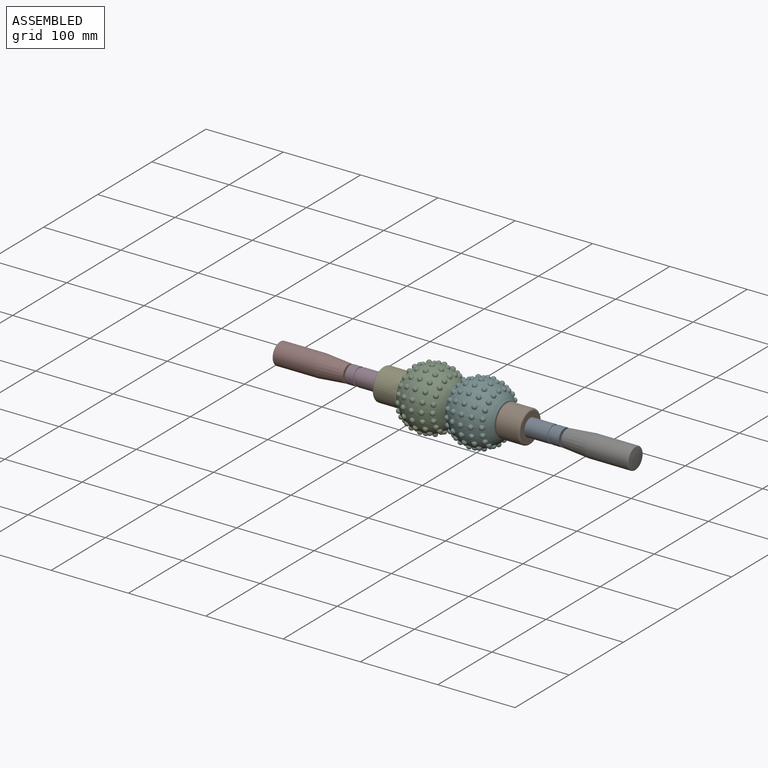
[diagram: assembled view]
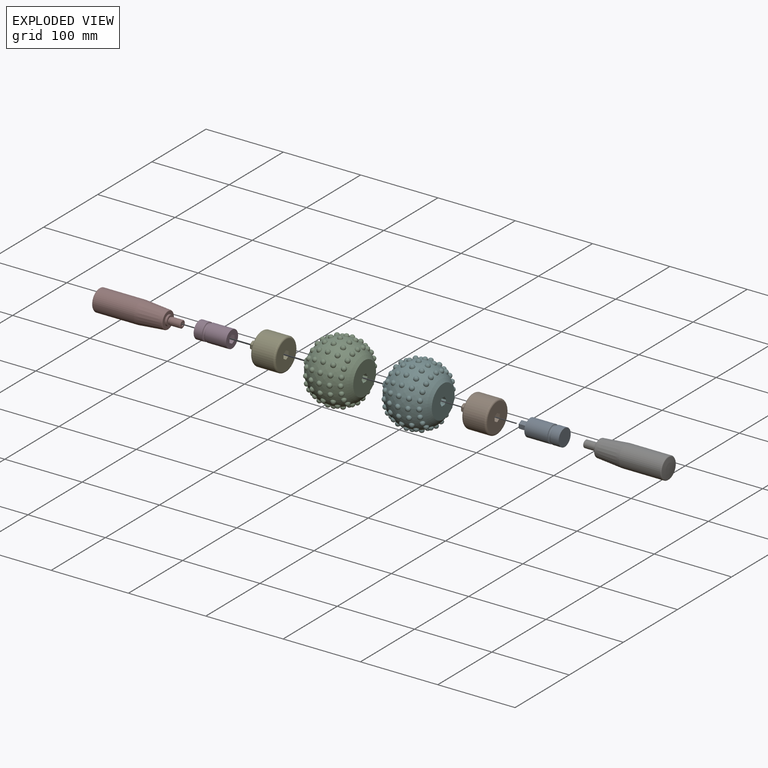
[diagram: exploded view]
GUIDED TOUR — MATED ASSEMBLY WITH SUBASSEMBLIES (Onshape document 25d12aa0dbe9cc3b2624c550, AutoMate assembly 25d12aa0dbe9cc3b2624c550_762bee8474b83015962dd6f4_f0a45906b147f34d450d7390_default)

This assembly has 10 component occurrences arranged in 8 top-level units: 6 individual components plus 2 subassemblies (S0, S1). The tour has two levels: first the top level, where each subassembly is treated as one rigid unit; then each subassembly is toured internally in its own section (nesting deeper than one subassembly level is flattened into its subassembly's section).

Components are labeled P0..P9 across the whole record; subassembly units are labeled S0..S1. A mate is a constraint between two units; its type names the relative motion it leaves free:
  FASTENED — locks the two components together rigidly (no relative motion),
  REVOLUTE — leaves rotation about the listed axis free (a hinge).
Axis/direction vectors are unit vectors and 'through' points are millimeter coordinates, both in the assembly's world frame.

TOP-LEVEL MATES (between units; each subassembly's internal mates are listed in its own section)
  1. FASTENED "Fastened 2": P0 <-> S0, direction (-1.000, 0.000, 0.000) through (69.82, -0.23, -0.31) mm
  2. FASTENED "Fastened 5": P3 <-> S1, direction (1.000, 0.000, 0.000) through (-120.67, -0.23, -0.31) mm
  3. REVOLUTE "Revolute 2": P3 <-> P8, axis (-1.000, 0.000, 0.000) through (-162.62, -0.23, -0.31) mm
  4. FASTENED "Fastened 4": P2 <-> S1, direction (-1.000, 0.000, 0.000) through (-88.93, -0.23, -0.31) mm
  5. REVOLUTE "Revolute 1": P0 <-> P7, axis (1.000, 0.000, 0.000) through (114.27, -0.23, -0.31) mm
  6. FASTENED "Fastened 3": P2 <-> P6, direction (1.000, 0.000, 0.000) through (-25.43, -0.23, -0.31) mm
  7. FASTENED "Fastened 1": P6 <-> S0, direction (1.000, 0.000, 0.000) through (38.07, -0.23, -0.31) mm

TOP-LEVEL ASSEMBLY ORDER
  1. P0 — the base component [order heuristic]
  2. S0 [order heuristic]
  3. P7 [order heuristic]
  4. P6 [order heuristic]
  5. P2 [order heuristic]
  6. S1 [order heuristic]
  7. P3 [order heuristic]
  8. P8 [order heuristic]
Order-tag legend:
  [order heuristic] — this assembly is geometrically interlocked (no collision-free removal order exists), so components are listed in mate-graph order; insertion feasibility is not verified.

Of the 10 component occurrences, 6 carry the full construction recipe — the FeatureScript program that regenerates the part's solid from scratch; the rest are supplied as boundary geometry only. Each toured unit is shown spotlighted twice — assembled, then exploded with a leader line back to its socket (green = recipe-attached component, orange = geometry-only, blue = subassembly unit; the rest desaturated gray).
NOTE — this tour is split across 2 documents so each fits a 32k-token context. This is document 1: the component sections continue in the remaining 1 document, each repeating the header above.
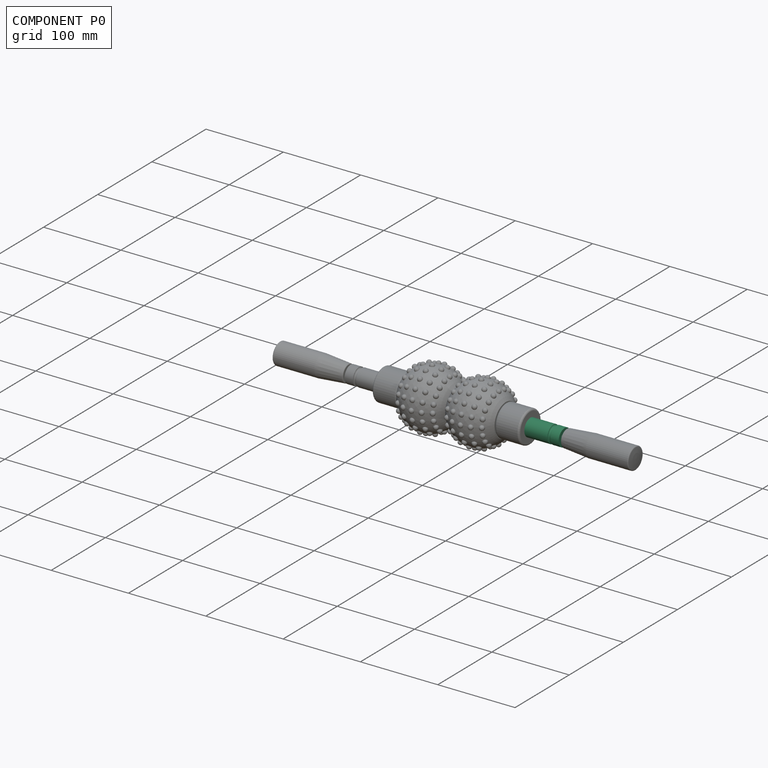
[diagram: component P0 — assembled]
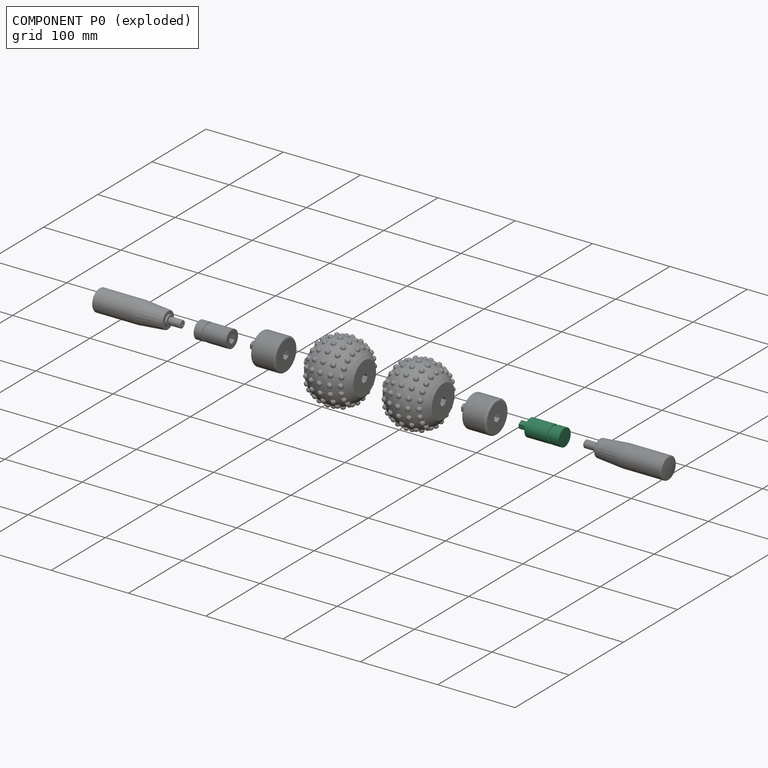
[diagram: component P0 — exploded]
COMPONENT P0 — recipe-attached (CADFS 00455743, mesh-verified: the recipe's output STEP matches this component's geometry to below the mesh-comparison resolution (tessellation chordal tolerance ~0.0978 mm)).
Held by: FASTENED mate "Fastened 2" to P1; REVOLUTE mate "Revolute 1" to P7.
Construction recipe (FeatureScript — the CAD program that rebuilds this solid; sketch coordinates are in the units given by the * unit suffixes, e.g. mm):

FeatureScript 1511;
import(path : "onshape/std/geometry.fs", version : "1511.0");
import(path : "onshape/std/common.fs", version : "1511.0");
const mm = millimeter;
const VERTEX = EntityType.VERTEX;
const EDGE = EntityType.EDGE;
const FACE = EntityType.FACE;
const BODY = EntityType.BODY;
function v(x, y){return vector(x, y);}
function OD(order){return orderDisambiguation(order);}
function OSD(set){return originalSetDisambiguation(set);}
function TD(topology){return topologyDisambiguation(topology);}
function TDD(query){return trueDependencyDisambiguation(query);}
function sQuery(a, b, c) {return sketchEntityQuery(a, b, c);}

annotation { "Feature Type Name" : "Feature", "Feature Type Description" : "" }
export const myFeature = defineFeature(function(context is Context, id is Id, definition is map)
    precondition{}
    {
        {
            var Q0;
            Q0=qCreatedBy(makeId("Right.planeOp"),FACE);
            var sketch = newSketch(context, id + "F0", { "sketchPlane" : qUnion([Q0])});
            skCircle(sketch, "E0", {"center": v(0, 0) * mm, "radius": 11.11 * mm});
            skSolve(sketch);
        }
        {
            var Q0;
            Q0 = qSketchRegion(id + "F0", true);
            extrude(context, id + "F1", {"entities" : qUnion([Q0]), "depth" : 44.45 * mm});
        }
        {
            var Q0;
            Q0=qCreatedBy(makeId("Right.planeOp"),FACE);
            var sketch = newSketch(context, id + "F2", { "sketchPlane" : qUnion([Q0])});
            skCircle(sketch, "E1.cCircle", {"center": v(0, 0) * mm, "radius": 4.76 * mm, "construction": true});
            skLineSegment(sketch, "E1.0", {"start": v(-4.76, -2.75) * mm, "end": v(-4.76, 2.75) * mm});
            skLineSegment(sketch, "E1.1", {"start": v(-4.76, 2.75) * mm, "end": v(0, 5.5) * mm});
            skLineSegment(sketch, "E1.2", {"start": v(0, 5.5) * mm, "end": v(4.76, 2.75) * mm});
            skLineSegment(sketch, "E1.3", {"start": v(4.76, 2.75) * mm, "end": v(4.76, -2.75) * mm});
            skLineSegment(sketch, "E1.4", {"start": v(4.76, -2.75) * mm, "end": v(0, -5.5) * mm});
            skLineSegment(sketch, "E1.5", {"start": v(0, -5.5) * mm, "end": v(-4.76, -2.75) * mm});
            skPoint(sketch, "E1.0.midPoint", {"position": v(-4.76, 0) * mm});
            skSolve(sketch);
        }
        {
            var Q0;
            Q0 = qSketchRegion(id + "F2", true);
            extrude(context, id + "F3", {"entities" : qUnion([Q0]), "operationType" : NewBodyOperationType.ADD, "oppositeDirection" : true, "depth" : 12.7 * mm, "offsetDistance" : 25.4 * mm});
        }
        {
            var Q0;
            Q0=makeQuery(id+"F3.opExtrude","CAP_EDGE",EDGE,{"disambiguationData":[OSD([sQuery(id+"F2.wireOp",EDGE,"E1.1")])],"isStart":false});
            var Q1;
            Q1=makeQuery(id+"F3.opExtrude","CAP_EDGE",EDGE,{"disambiguationData":[OSD([sQuery(id+"F2.wireOp",EDGE,"E1.2")])],"isStart":false});
            var Q2;
            Q2=makeQuery(id+"F3.opExtrude","CAP_EDGE",EDGE,{"disambiguationData":[OSD([sQuery(id+"F2.wireOp",EDGE,"E1.3")])],"isStart":false});
            var Q3;
            Q3=makeQuery(id+"F3.opExtrude","CAP_EDGE",EDGE,{"disambiguationData":[OSD([sQuery(id+"F2.wireOp",EDGE,"E1.4")])],"isStart":false});
            var Q4;
            Q4=makeQuery(id+"F3.opExtrude","CAP_EDGE",EDGE,{"disambiguationData":[OSD([sQuery(id+"F2.wireOp",EDGE,"E1.5")])],"isStart":false});
            var Q5;
            Q5=makeQuery(id+"F3.opExtrude","CAP_EDGE",EDGE,{"disambiguationData":[OSD([sQuery(id+"F2.wireOp",EDGE,"E1.0")])],"isStart":false});
            fillet(context, id + "F4", {"entities" : qUnion([Q0, Q1, Q2, Q3, Q4, Q5]), "radius" : 2.38 * mm, "tangentPropagation" : true, "allowEdgeOverflow" : false});
        }
        {
            var Q0;
            Q0=makeQuery(id+"F1.opExtrude","CAP_FACE",FACE,{"disambiguationData":[OSD([sQuery(id+"F0.wireOp",EDGE,"E0")])],"isStart":false});
            var sketch = newSketch(context, id + "F5", { "sketchPlane" : qUnion([Q0])});
            skPoint(sketch, "E2", {"position": v(0, 0) * mm});
            skSolve(sketch);
        }
        {
            var Q0;
            Q0=qCreatedBy(makeId("Front.planeOp"),FACE);
            var sketch = newSketch(context, id + "F6", { "sketchPlane" : qUnion([Q0])});
            skCircle(sketch, "E3", {"center": v(31.75, 11.11) * mm, "radius": 1.9 * mm});
            skLineSegment(sketch, "E4", {"start": v(0, 0) * mm, "end": v(79.53, 0) * mm, "construction": true});
            skSolve(sketch);
        }
        {
            var Q0;
            Q0=makeQuery(id+"F6.imprint","IMPRINT",FACE,{"disambiguationData":[TD([[makeQuery(id+"F6.imprint","IMPRINT",EDGE,{"derivedFrom":sQuery(id+"F6.wireOp",EDGE,"E3")}),1.0]])]});
            var Q1;
            Q1=sQuery(id+"F6.wireOp",EDGE,"E3");
            var Q2;
            Q2=sQuery(id+"F6.wireOp",EDGE,"E4");
            revolve(context, id + "F7", {"operationType" : NewBodyOperationType.REMOVE, "entities" : qUnion([Q0]), "surfaceEntities" : qUnion([Q1]), "axis" : qUnion([Q2]), "revolveType" : RevolveType.FULL, "oppositeDirection" : true});
        }
    });
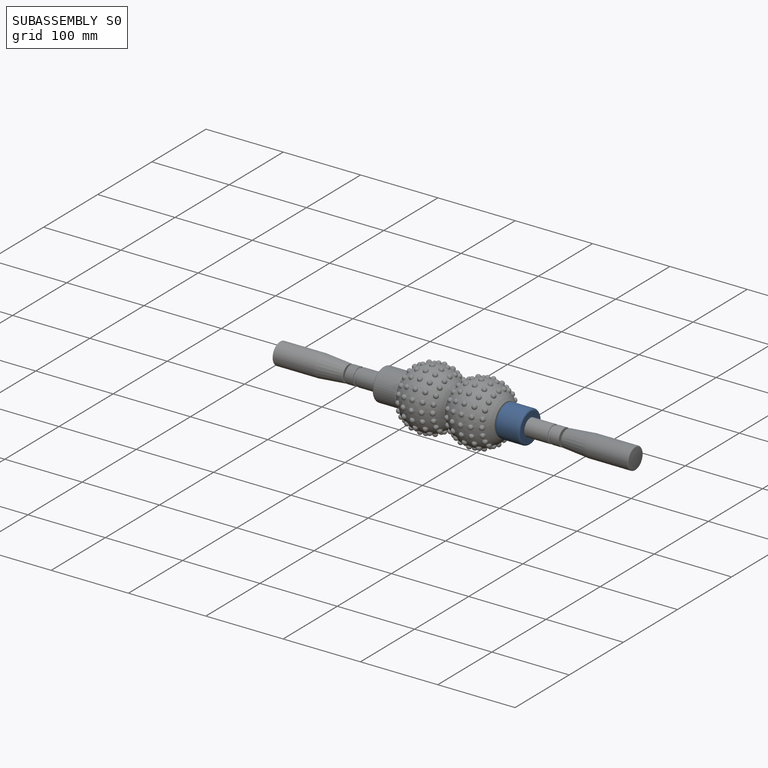
[diagram: subassembly S0 — assembled]
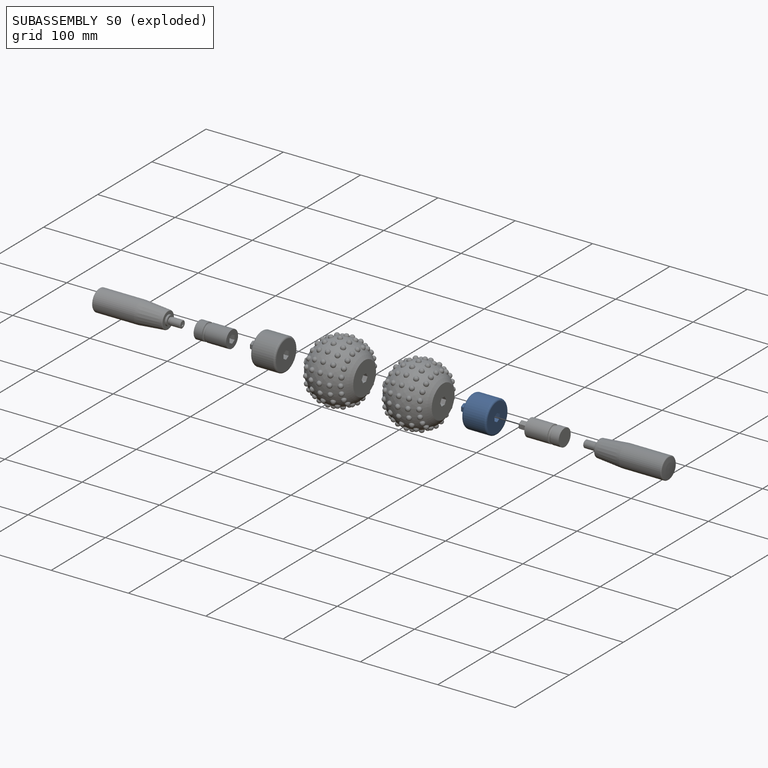
[diagram: subassembly S0 — exploded]
SUBASSEMBLY S0 — 2 components (P1, P4), of which 2 recipe-attached; toured below.
Held by: FASTENED mate "Fastened 2" to P0; FASTENED mate "Fastened 1" to P6.
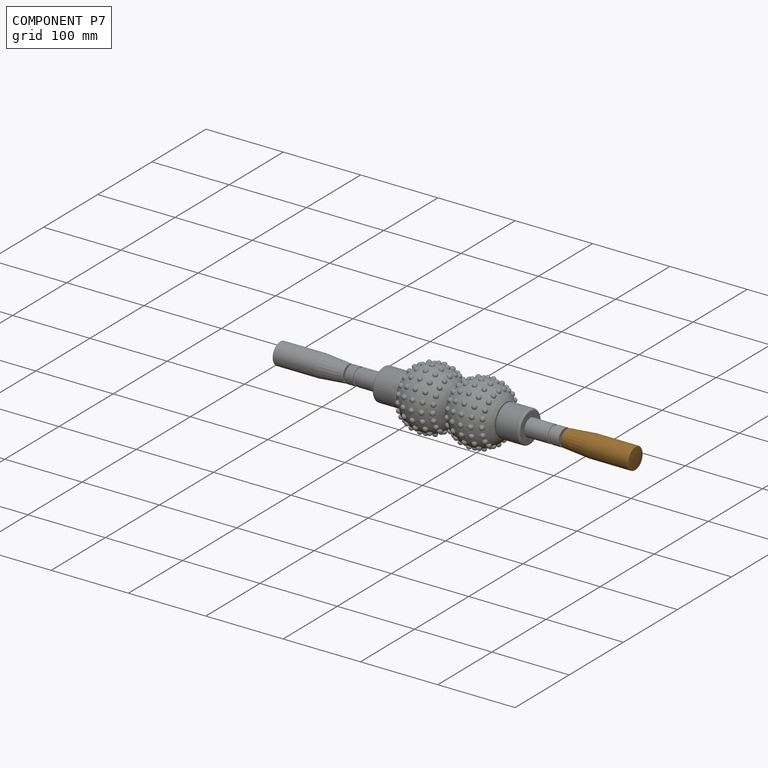
[diagram: component P7 — assembled]
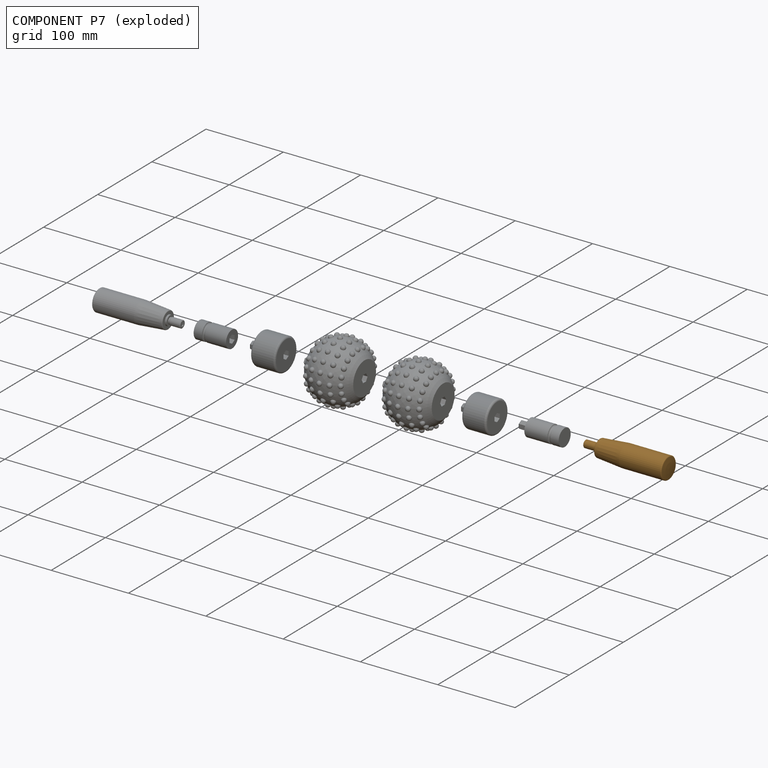
[diagram: component P7 — exploded]
COMPONENT P7 — geometry summary (no construction recipe available for this part):
  bounding box: 108.5 x 30.2 x 30.2 mm
  B-rep topology: 1 solid, 20 faces, 87 edges
  volume: 52107 mm^3 (53% of its bounding box)
  symmetry: revolution-symmetric about the z axis through its bounding-box center; mirror-symmetric across its x mid-plane, y mid-plane
Held by: REVOLUTE mate "Revolute 1" to P0.
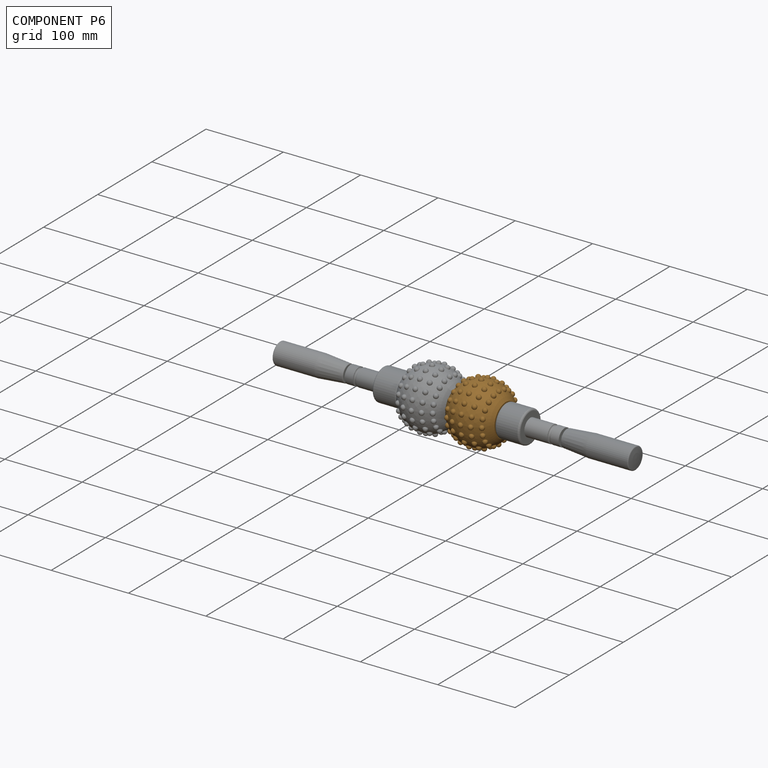
[diagram: component P6 — assembled]
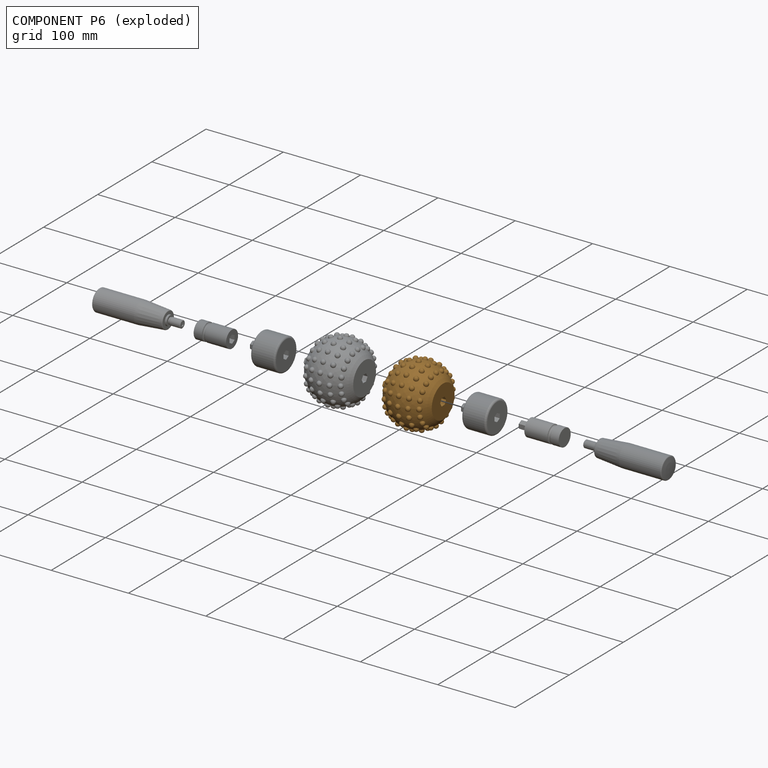
[diagram: component P6 — exploded]
COMPONENT P6 — geometry summary (no construction recipe available for this part):
  bounding box: 82.6 x 82.6 x 76.2 mm
  B-rep topology: 1 solid, 123 faces, 606 edges
  volume: 229427 mm^3 (44% of its bounding box)
  symmetry: 4-fold rotationally symmetric about the x axis; mirror-symmetric across its y mid-plane, z mid-plane
Held by: FASTENED mate "Fastened 3" to P2; FASTENED mate "Fastened 1" to P1.
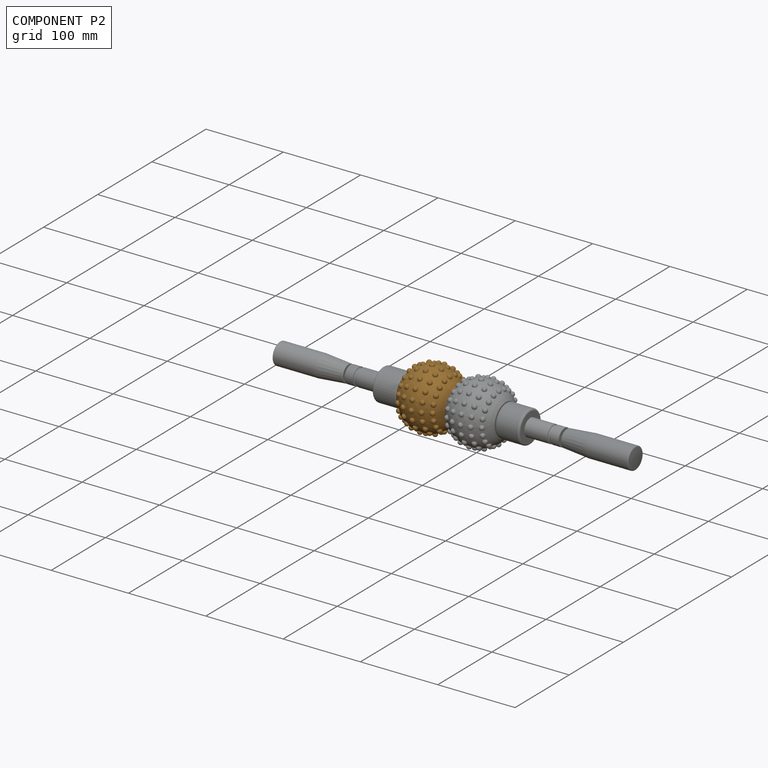
[diagram: component P2 — assembled]
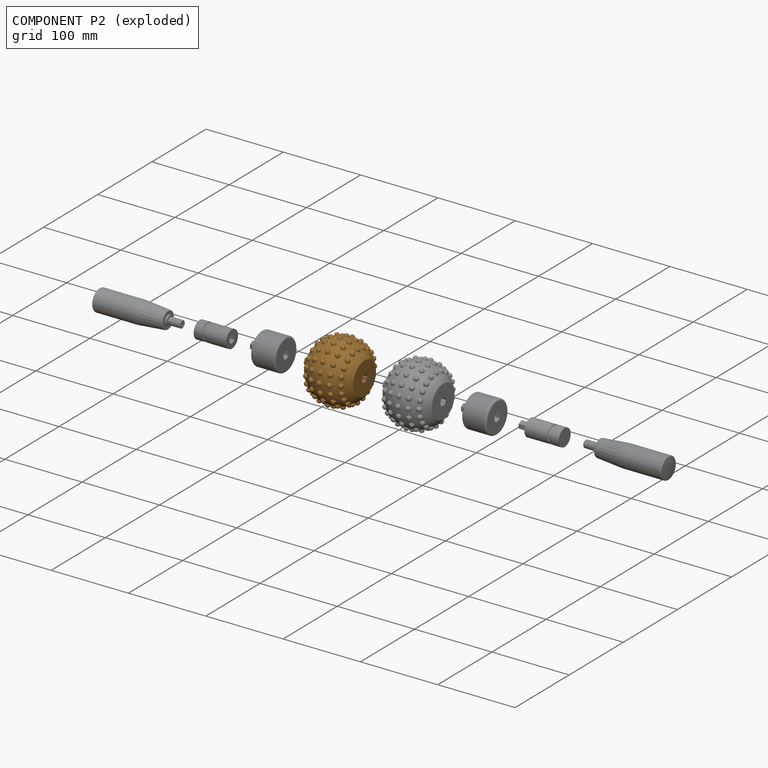
[diagram: component P2 — exploded]
COMPONENT P2 — geometry summary (no construction recipe available for this part):
  bounding box: 82.6 x 82.6 x 76.2 mm
  B-rep topology: 1 solid, 123 faces, 606 edges
  volume: 229427 mm^3 (44% of its bounding box)
  symmetry: 4-fold rotationally symmetric about the x axis; mirror-symmetric across its y mid-plane, z mid-plane
Held by: FASTENED mate "Fastened 4" to P5; FASTENED mate "Fastened 3" to P6.
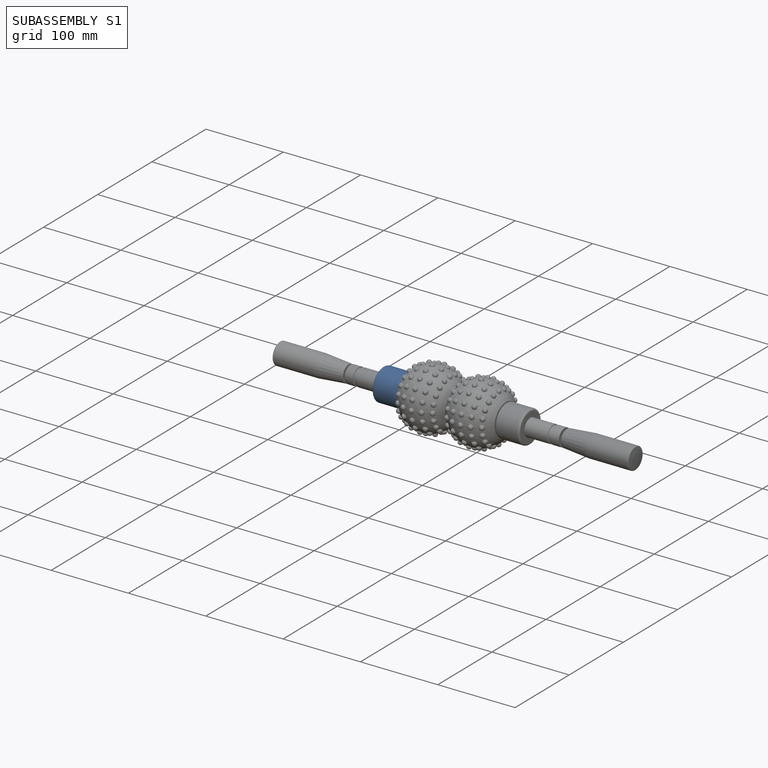
[diagram: subassembly S1 — assembled]
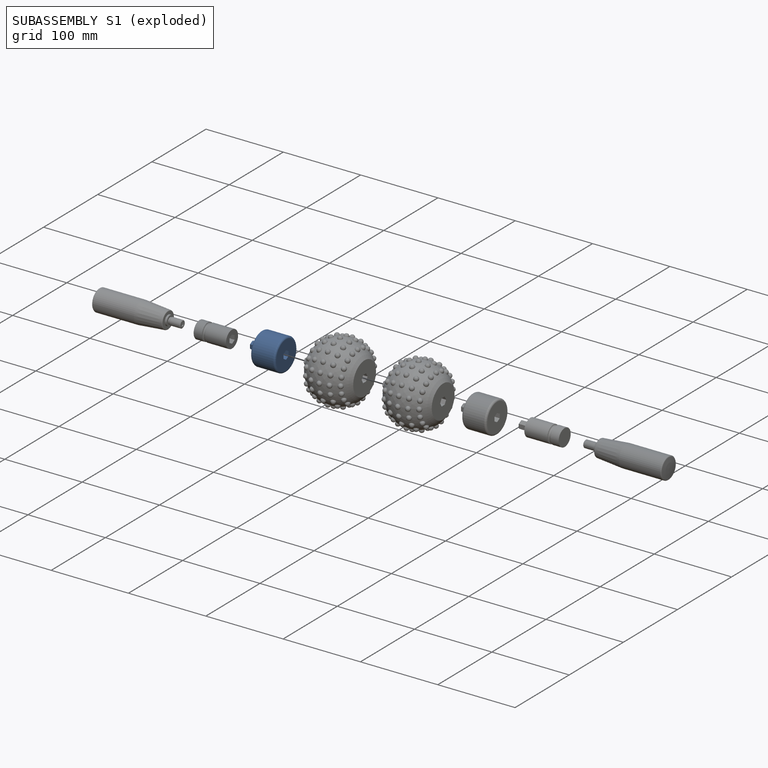
[diagram: subassembly S1 — exploded]
SUBASSEMBLY S1 — 2 components (P5, P9), of which 2 recipe-attached; toured below.
Held by: FASTENED mate "Fastened 5" to P3; FASTENED mate "Fastened 4" to P2.
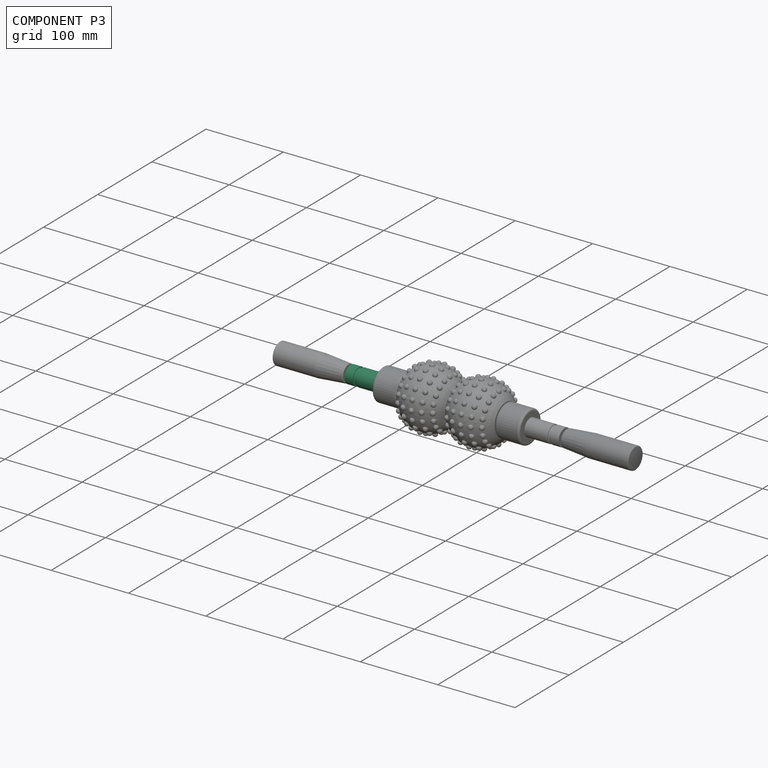
[diagram: component P3 — assembled]
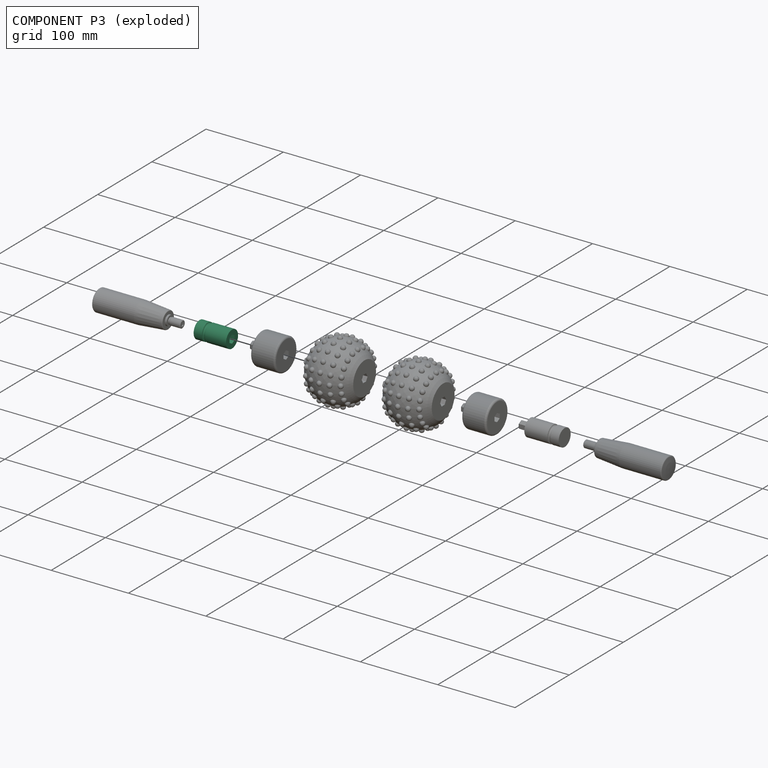
[diagram: component P3 — exploded]
COMPONENT P3 — recipe-attached (CADFS 00455741, mesh-verified: the recipe's output STEP matches this component's geometry to below the mesh-comparison resolution (tessellation chordal tolerance ~0.0786 mm)).
Held by: FASTENED mate "Fastened 5" to P5; REVOLUTE mate "Revolute 2" to P8.
Construction recipe (FeatureScript — the CAD program that rebuilds this solid; sketch coordinates are in the units given by the * unit suffixes, e.g. mm):

FeatureScript 1511;
import(path : "onshape/std/geometry.fs", version : "1511.0");
import(path : "onshape/std/common.fs", version : "1511.0");
const mm = millimeter;
const VERTEX = EntityType.VERTEX;
const EDGE = EntityType.EDGE;
const FACE = EntityType.FACE;
const BODY = EntityType.BODY;
function v(x, y){return vector(x, y);}
function OD(order){return orderDisambiguation(order);}
function OSD(set){return originalSetDisambiguation(set);}
function TD(topology){return topologyDisambiguation(topology);}
function TDD(query){return trueDependencyDisambiguation(query);}
function sQuery(a, b, c) {return sketchEntityQuery(a, b, c);}

annotation { "Feature Type Name" : "Feature", "Feature Type Description" : "" }
export const myFeature = defineFeature(function(context is Context, id is Id, definition is map)
    precondition{}
    {
        {
            var Q0;
            Q0=qCreatedBy(makeId("Right.planeOp"),FACE);
            var sketch = newSketch(context, id + "F0", { "sketchPlane" : qUnion([Q0])});
            skCircle(sketch, "E0", {"center": v(0, 0) * mm, "radius": 11.11 * mm});
            skPoint(sketch, "E1.0.midPoint", {"position": v(4.79, 0) * mm});
            skSolve(sketch);
        }
        {
            var Q0;
            Q0 = qSketchRegion(id + "F0", true);
            extrude(context, id + "F1", {"entities" : qUnion([Q0]), "oppositeDirection" : true, "depth" : 41.95 * mm});
        }
        {
            var Q0;
            Q0=qCreatedBy(makeId("Right.planeOp"),FACE);
            var sketch = newSketch(context, id + "F2", { "sketchPlane" : qUnion([Q0])});
            skCircle(sketch, "E2.cCircle", {"center": v(0, 0) * mm, "radius": 4.79 * mm, "construction": true});
            skLineSegment(sketch, "E2.0", {"start": v(4.79, 2.76) * mm, "end": v(4.79, -2.76) * mm});
            skLineSegment(sketch, "E2.1", {"start": v(4.79, -2.76) * mm, "end": v(0, -5.53) * mm});
            skLineSegment(sketch, "E2.2", {"start": v(0, -5.53) * mm, "end": v(-4.79, -2.76) * mm});
            skLineSegment(sketch, "E2.3", {"start": v(-4.79, -2.76) * mm, "end": v(-4.79, 2.76) * mm});
            skLineSegment(sketch, "E2.4", {"start": v(-4.79, 2.76) * mm, "end": v(0, 5.53) * mm});
            skLineSegment(sketch, "E2.5", {"start": v(0, 5.53) * mm, "end": v(4.79, 2.76) * mm});
            skPoint(sketch, "E2.0.midPoint", {"position": v(4.79, 0) * mm});
            skSolve(sketch);
        }
        {
            var Q0;
            Q0 = qSketchRegion(id + "F2", true);
            extrude(context, id + "F3", {"entities" : qUnion([Q0]), "operationType" : NewBodyOperationType.REMOVE, "oppositeDirection" : true, "depth" : 9.52 * mm});
        }
        {
            var Q0;
            Q0=makeQuery(id+"F1.opExtrude","CAP_FACE",FACE,{"disambiguationData":[OSD([sQuery(id+"F0.wireOp",EDGE,"E0")])],"isStart":false});
            var sketch = newSketch(context, id + "F4", { "sketchPlane" : qUnion([Q0])});
            skPoint(sketch, "E3", {"position": v(0, 0) * mm});
            skSolve(sketch);
        }
        {
            var Q0;
            Q0=sQuery(id+"F4.wireOp",VERTEX,"E3");
            var Q1;
            Q1=makeQuery(id+"F1.opExtrude","SWEPT_BODY",BODY,{"disambiguationData":[OSD([sQuery(id+"F0.wireOp",EDGE,"E0")])]});
            hole(context, id + "F5", {"style" : HoleStyle.SIMPLE, "endStyle" : HoleEndStyle.BLIND, "standardTappedOrClearance" : lookupTablePath({ "standard" : "ANSI", "engagement" : "75%", "pitch" : "16 tpi", "size" : "3/8", "type" : "Tapped" }), "standardBlindInLast" : lookupTablePath({ "standard" : "ANSI", "engagement" : "75%", "pitch" : "16 tpi", "size" : "3/8", "type" : "Tapped" }), "holeDiameter" : 7.94 * mm, "showTappedDepth" : true, "holeDepth" : 34.75 * mm, "isTappedThrough" : true, "tappedDepth" : 29.98 * mm, "tapClearance" : 3, "locations" : qUnion([Q0]), "scope" : qUnion([Q1]), "majorDiameter" : 9.53 * mm});
        }
        {
            var Q0;
            Q0=qCreatedBy(makeId("Front.planeOp"),FACE);
            var sketch = newSketch(context, id + "F6", { "sketchPlane" : qUnion([Q0])});
            skCircle(sketch, "E4", {"center": v(-29.25, 11.11) * mm, "radius": 1.9 * mm});
            skLineSegment(sketch, "E5", {"start": v(0, 0) * mm, "end": v(-64.29, 0) * mm, "construction": true});
            skSolve(sketch);
        }
        {
            var Q0;
            Q0=makeQuery(id+"F6.imprint","IMPRINT",FACE,{"disambiguationData":[TD([[makeQuery(id+"F6.imprint","IMPRINT",EDGE,{"derivedFrom":sQuery(id+"F6.wireOp",EDGE,"E4")}),1.0]])]});
            var Q1;
            Q1=sQuery(id+"F6.wireOp",EDGE,"E5");
            var Q2;
            Q2=sQuery(id+"F6.wireOp",EDGE,"E5");
            revolve(context, id + "F7", {"operationType" : NewBodyOperationType.REMOVE, "entities" : qUnion([Q0]), "surfaceEntities" : qUnion([Q1]), "axis" : qUnion([Q2]), "revolveType" : RevolveType.FULL, "oppositeDirection" : true});
        }
    });
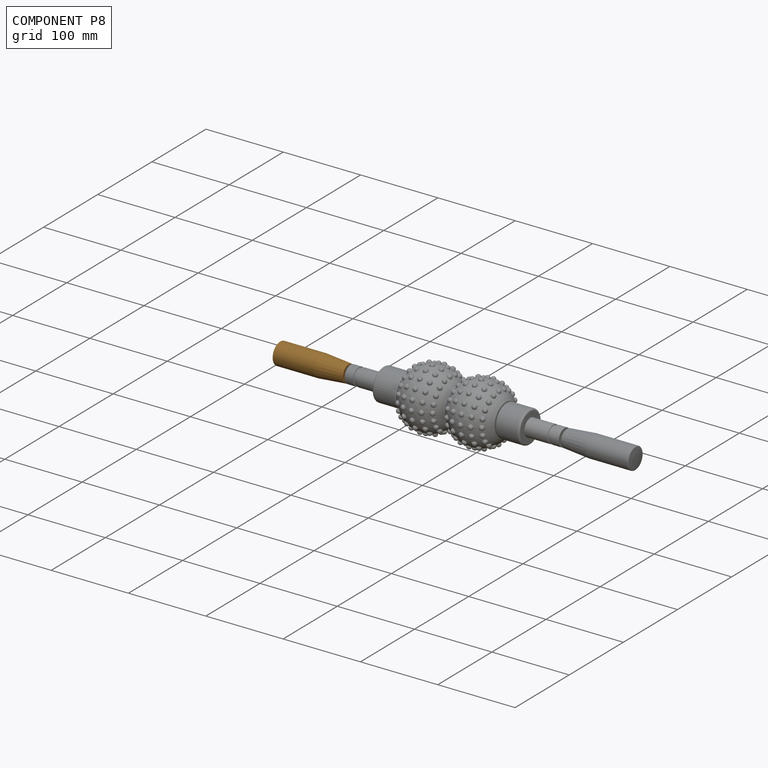
[diagram: component P8 — assembled]
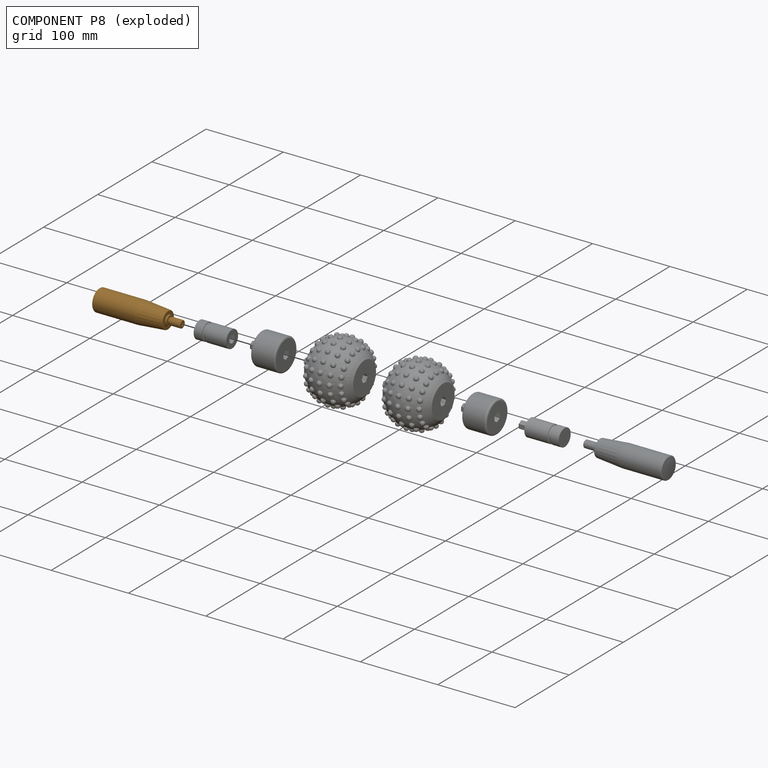
[diagram: component P8 — exploded]
COMPONENT P8 — geometry summary (no construction recipe available for this part):
  bounding box: 108.5 x 30.2 x 30.2 mm
  B-rep topology: 1 solid, 20 faces, 87 edges
  volume: 52107 mm^3 (53% of its bounding box)
  symmetry: revolution-symmetric about the z axis through its bounding-box center; mirror-symmetric across its x mid-plane, y mid-plane
Held by: REVOLUTE mate "Revolute 2" to P3.
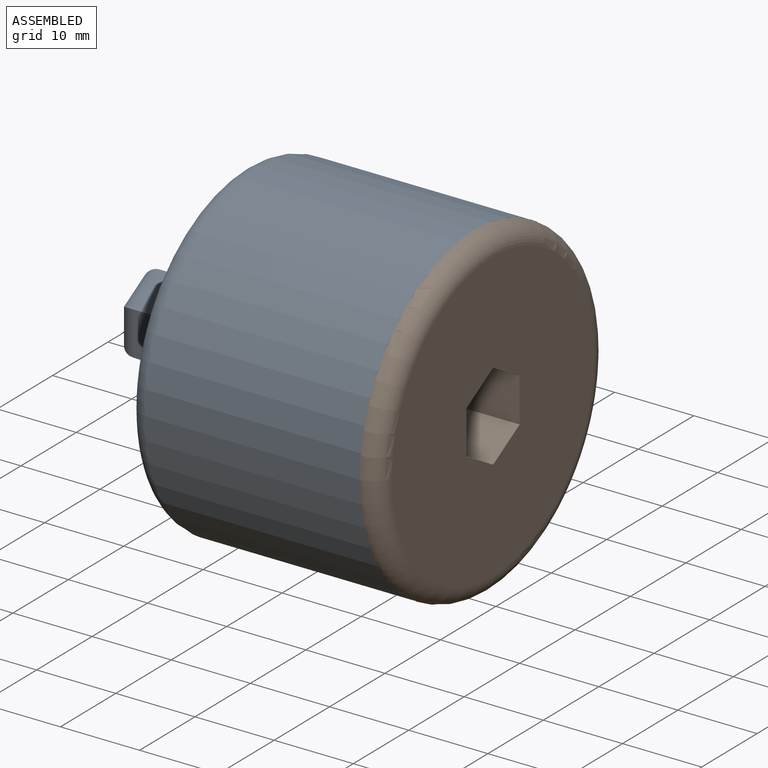
[diagram: subassembly S0 — assembled view]
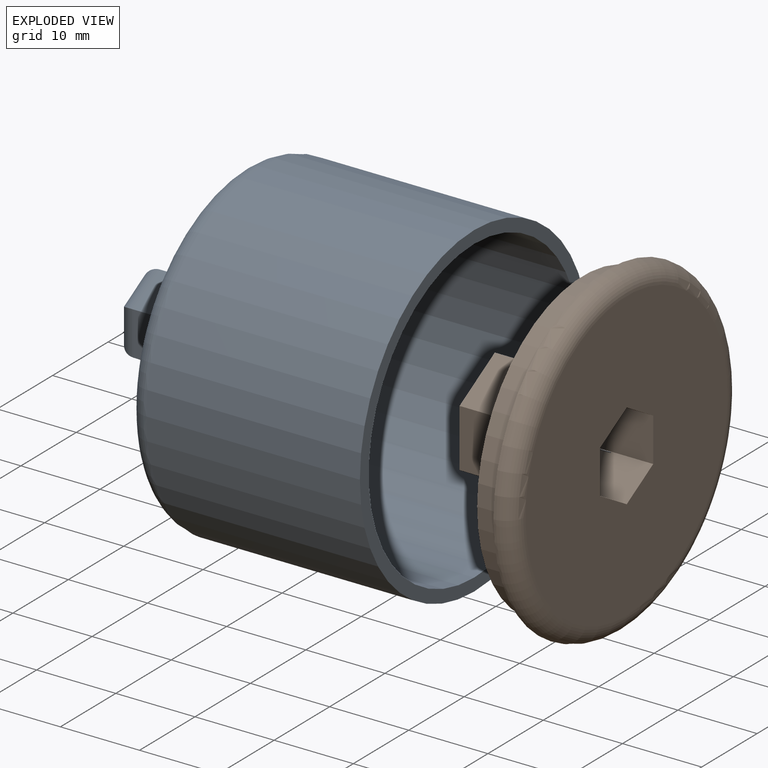
[diagram: subassembly S0 — exploded view]
SUBASSEMBLY S0 TOUR — 2 components, shown here in isolation at its own camera.

INTERNAL MATES
  1. FASTENED "Fastened 1": P1 <-> P4, direction (1.000, 0.000, 0.000) through (67.43, -0.23, -0.31) mm
  2. FASTENED "Fastened 1": P1 <-> P4, direction (1.000, 0.000, 0.000) through (67.43, -0.23, -0.31) mm

ASSEMBLY ORDER (within the subassembly)
  1. P1 — the base component [order heuristic]
  2. P4 [order heuristic]
Order-tag legend:
  [order heuristic] — this assembly is geometrically interlocked (no collision-free removal order exists), so components are listed in mate-graph order; insertion feasibility is not verified.
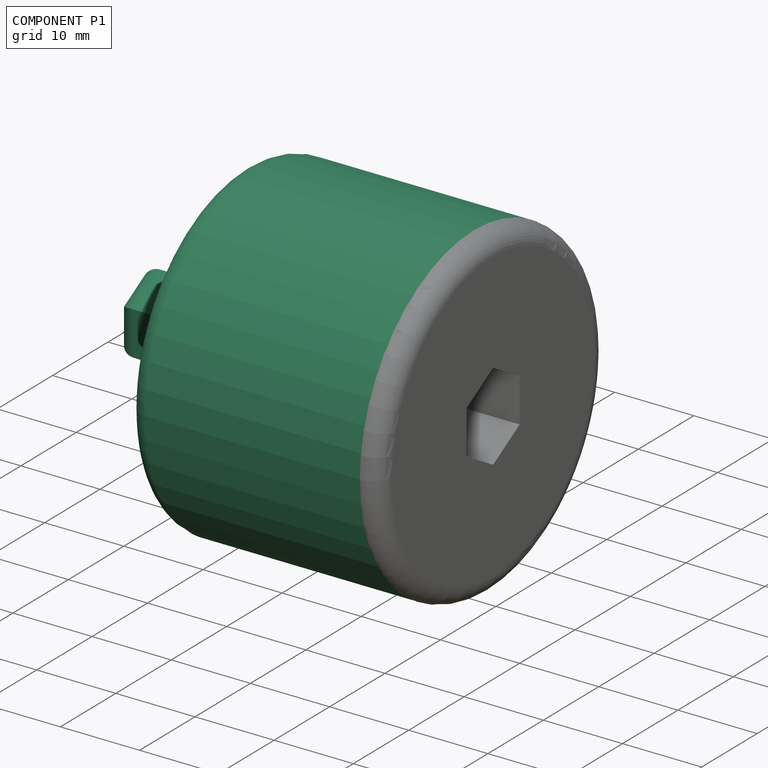
[diagram: component P1 — assembled]
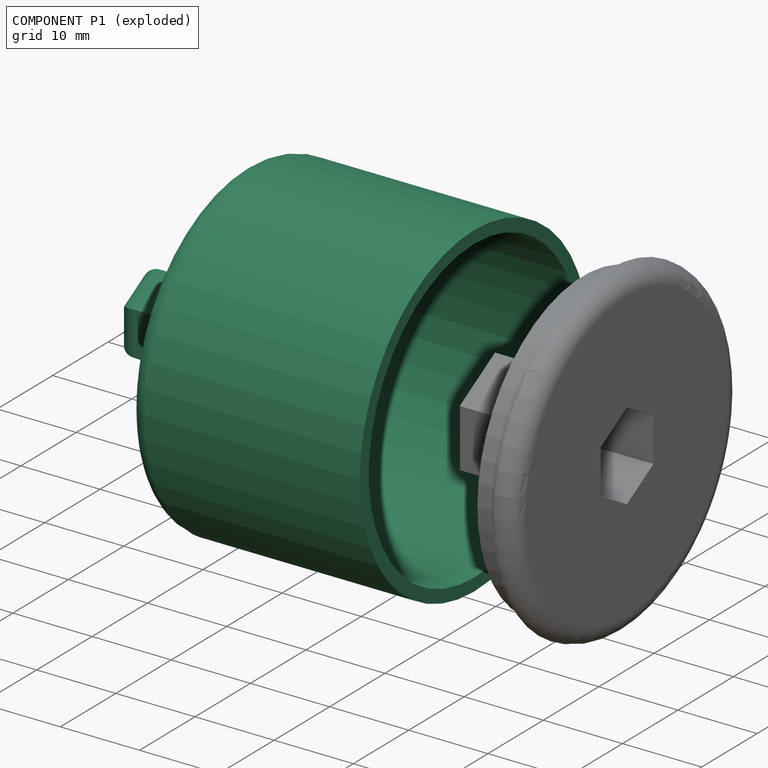
[diagram: component P1 — exploded]
COMPONENT P1 — recipe-attached (CADFS 00455740, mesh-verified: the recipe's output STEP matches this component's geometry to below the mesh-comparison resolution (tessellation chordal tolerance ~0.108 mm)).
Held by: FASTENED mate "Fastened 1" to P4; FASTENED mate "Fastened 1" to P4.
Construction recipe (FeatureScript — the CAD program that rebuilds this solid; sketch coordinates are in the units given by the * unit suffixes, e.g. mm):

FeatureScript 1511;
import(path : "onshape/std/geometry.fs", version : "1511.0");
import(path : "onshape/std/common.fs", version : "1511.0");
const mm = millimeter;
const VERTEX = EntityType.VERTEX;
const EDGE = EntityType.EDGE;
const FACE = EntityType.FACE;
const BODY = EntityType.BODY;
function v(x, y){return vector(x, y);}
function OD(order){return orderDisambiguation(order);}
function OSD(set){return originalSetDisambiguation(set);}
function TD(topology){return topologyDisambiguation(topology);}
function TDD(query){return trueDependencyDisambiguation(query);}
function sQuery(a, b, c) {return sketchEntityQuery(a, b, c);}

annotation { "Feature Type Name" : "Feature", "Feature Type Description" : "" }
export const myFeature = defineFeature(function(context is Context, id is Id, definition is map)
    precondition{}
    {
        {
            var Q0;
            Q0=qCreatedBy(makeId("Right.planeOp"),FACE);
            var sketch = newSketch(context, id + "F0", { "sketchPlane" : qUnion([Q0])});
            skCircle(sketch, "E0.cCircle", {"center": v(0, 0) * mm, "radius": 4.76 * mm, "construction": true});
            skLineSegment(sketch, "E0.0", {"start": v(4.76, 2.75) * mm, "end": v(4.76, -2.75) * mm});
            skLineSegment(sketch, "E0.1", {"start": v(4.76, -2.75) * mm, "end": v(0, -5.5) * mm});
            skLineSegment(sketch, "E0.2", {"start": v(0, -5.5) * mm, "end": v(-4.76, -2.75) * mm});
            skLineSegment(sketch, "E0.3", {"start": v(-4.76, -2.75) * mm, "end": v(-4.76, 2.75) * mm});
            skLineSegment(sketch, "E0.4", {"start": v(-4.76, 2.75) * mm, "end": v(0, 5.5) * mm});
            skLineSegment(sketch, "E0.5", {"start": v(0, 5.5) * mm, "end": v(4.76, 2.75) * mm});
            skPoint(sketch, "E0.0.midPoint", {"position": v(4.76, 0) * mm});
            skSolve(sketch);
        }
        {
            var Q0;
            Q0 = qSketchRegion(id + "F0", true);
            extrude(context, id + "F1", {"entities" : qUnion([Q0]), "depth" : 12.7 * mm});
        }
        {
            var Q0;
            Q0=makeQuery(id+"F1.opExtrude","CAP_FACE",FACE,{"disambiguationData":[OSD([sQuery(id+"F0.wireOp",EDGE,"E0.0"),sQuery(id+"F0.wireOp",EDGE,"E0.1"),sQuery(id+"F0.wireOp",EDGE,"E0.2"),sQuery(id+"F0.wireOp",EDGE,"E0.3"),sQuery(id+"F0.wireOp",EDGE,"E0.4"),sQuery(id+"F0.wireOp",EDGE,"E0.5")])],"isStart":false});
            var sketch = newSketch(context, id + "F2", { "sketchPlane" : qUnion([Q0])});
            skCircle(sketch, "E1", {"center": v(0, 0) * mm, "radius": 20.64 * mm});
            skSolve(sketch);
        }
        {
            var Q0;
            Q0 = qSketchRegion(id + "F2", true);
            extrude(context, id + "F3", {"entities" : qUnion([Q0]), "operationType" : NewBodyOperationType.ADD, "depth" : 29.36 * mm, "offsetDistance" : 25.4 * mm});
        }
        {
            var Q0;
            Q0=makeQuery(id+"F3.opExtrude","CAP_FACE",FACE,{"disambiguationData":[OSD([sQuery(id+"F2.wireOp",EDGE,"E1")])],"isStart":false});
            shell(context, id + "F4", {"entities" : qUnion([Q0]), "thickness" : 1.59 * mm});
        }
        {
            var Q0;
            {var subQ0=sQuery(id+"F2.wireOp",EDGE,"E1");Q0=makeQuery(id+"F4.opShell","OFFSET_EDGE",EDGE,{"disambiguationData":[OSD([subQ0]),TDD([makeQuery(id+"F3.opExtrude","CAP_EDGE",EDGE,{"disambiguationData":[OSD([subQ0])],"isStart":true})])]});}
            fillet(context, id + "F5", {"entities" : qUnion([Q0]), "radius" : 0.8 * mm, "tangentPropagation" : true, "allowEdgeOverflow" : false});
        }
        {
            var Q0;
            Q0=makeQuery(id+"F3.opExtrude","CAP_EDGE",EDGE,{"disambiguationData":[OSD([sQuery(id+"F2.wireOp",EDGE,"E1")])],"isStart":true});
            fillet(context, id + "F6", {"entities" : qUnion([Q0]), "radius" : 2.38 * mm, "tangentPropagation" : true, "allowEdgeOverflow" : false});
        }
        {
            var Q0;
            Q0=makeQuery(id+"F1.opExtrude","CAP_EDGE",EDGE,{"disambiguationData":[OSD([sQuery(id+"F0.wireOp",EDGE,"E0.5")])],"isStart":true});
            var Q1;
            Q1=makeQuery(id+"F1.opExtrude","CAP_EDGE",EDGE,{"disambiguationData":[OSD([sQuery(id+"F0.wireOp",EDGE,"E0.4")])],"isStart":true});
            var Q2;
            Q2=makeQuery(id+"F1.opExtrude","CAP_EDGE",EDGE,{"disambiguationData":[OSD([sQuery(id+"F0.wireOp",EDGE,"E0.3")])],"isStart":true});
            var Q3;
            Q3=makeQuery(id+"F1.opExtrude","CAP_EDGE",EDGE,{"disambiguationData":[OSD([sQuery(id+"F0.wireOp",EDGE,"E0.2")])],"isStart":true});
            var Q4;
            Q4=makeQuery(id+"F1.opExtrude","CAP_EDGE",EDGE,{"disambiguationData":[OSD([sQuery(id+"F0.wireOp",EDGE,"E0.1")])],"isStart":true});
            var Q5;
            Q5=makeQuery(id+"F1.opExtrude","CAP_EDGE",EDGE,{"disambiguationData":[OSD([sQuery(id+"F0.wireOp",EDGE,"E0.0")])],"isStart":true});
            fillet(context, id + "F7", {"entities" : qUnion([Q0, Q1, Q2, Q3, Q4, Q5]), "radius" : 2.38 * mm, "tangentPropagation" : true, "allowEdgeOverflow" : false});
        }
    });
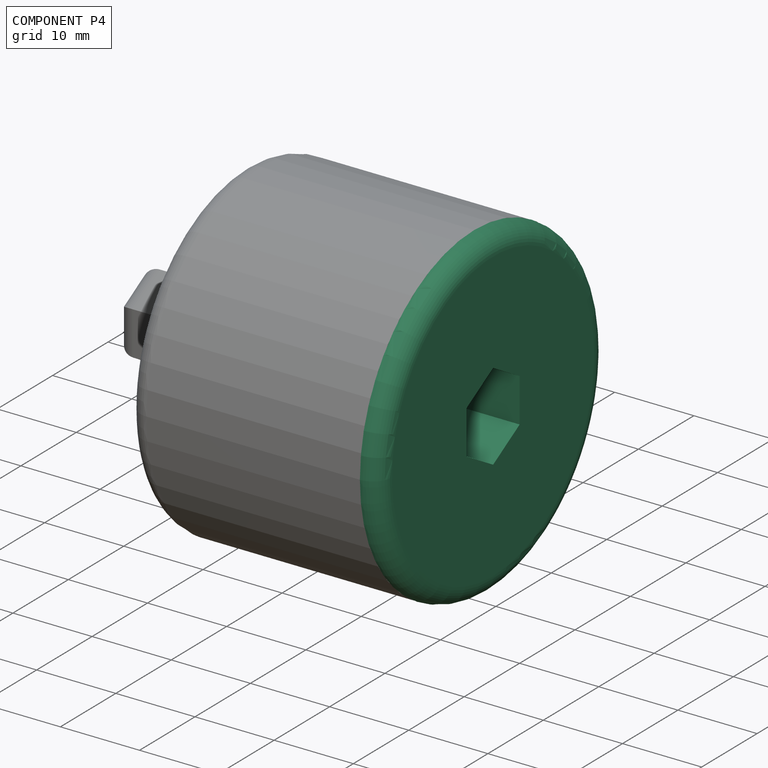
[diagram: component P4 — assembled]
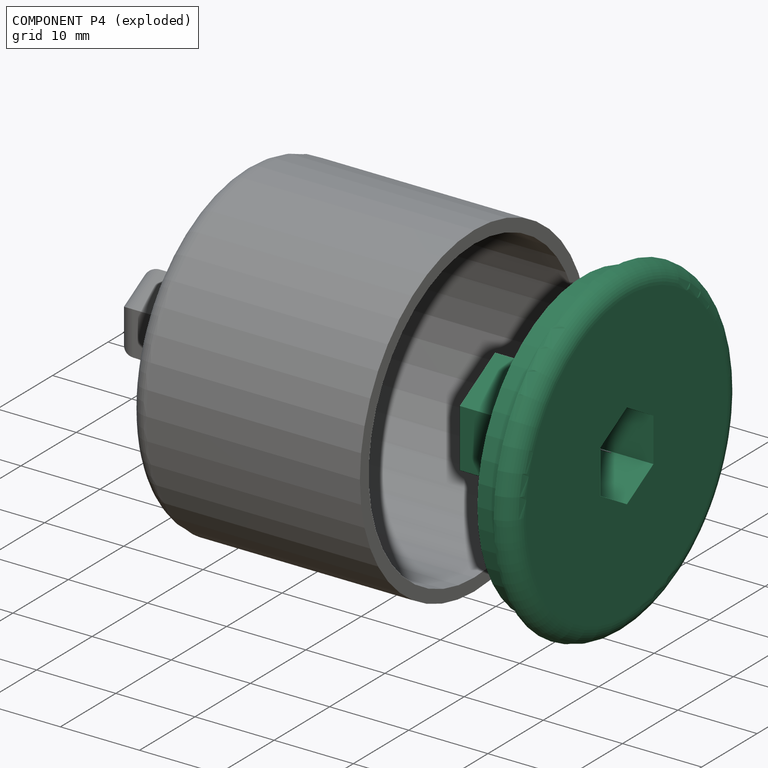
[diagram: component P4 — exploded]
COMPONENT P4 — recipe-attached (CADFS 00455742, mesh-verified: the recipe's output STEP matches this component's geometry to below the mesh-comparison resolution (tessellation chordal tolerance ~0.0911 mm)).
Held by: FASTENED mate "Fastened 1" to P1; FASTENED mate "Fastened 1" to P1.
Construction recipe (FeatureScript — the CAD program that rebuilds this solid; sketch coordinates are in the units given by the * unit suffixes, e.g. mm):

FeatureScript 1511;
import(path : "onshape/std/geometry.fs", version : "1511.0");
import(path : "onshape/std/common.fs", version : "1511.0");
const mm = millimeter;
const VERTEX = EntityType.VERTEX;
const EDGE = EntityType.EDGE;
const FACE = EntityType.FACE;
const BODY = EntityType.BODY;
function v(x, y){return vector(x, y);}
function OD(order){return orderDisambiguation(order);}
function OSD(set){return originalSetDisambiguation(set);}
function TD(topology){return topologyDisambiguation(topology);}
function TDD(query){return trueDependencyDisambiguation(query);}
function sQuery(a, b, c) {return sketchEntityQuery(a, b, c);}

annotation { "Feature Type Name" : "Feature", "Feature Type Description" : "" }
export const myFeature = defineFeature(function(context is Context, id is Id, definition is map)
    precondition{}
    {
        {
            var Q0;
            Q0=qCreatedBy(makeId("Right.planeOp"),FACE);
            var sketch = newSketch(context, id + "F0", { "sketchPlane" : qUnion([Q0])});
            skCircle(sketch, "E0.cCircle", {"center": v(0, 0) * mm, "radius": 6.35 * mm, "construction": true});
            skLineSegment(sketch, "E0.0", {"start": v(6.35, 3.67) * mm, "end": v(6.35, -3.67) * mm});
            skLineSegment(sketch, "E0.1", {"start": v(6.35, -3.67) * mm, "end": v(0, -7.33) * mm});
            skLineSegment(sketch, "E0.2", {"start": v(0, -7.33) * mm, "end": v(-6.35, -3.67) * mm});
            skLineSegment(sketch, "E0.3", {"start": v(-6.35, -3.67) * mm, "end": v(-6.35, 3.67) * mm});
            skLineSegment(sketch, "E0.4", {"start": v(-6.35, 3.67) * mm, "end": v(0, 7.33) * mm});
            skLineSegment(sketch, "E0.5", {"start": v(0, 7.33) * mm, "end": v(6.35, 3.67) * mm});
            skPoint(sketch, "E0.0.midPoint", {"position": v(6.35, 0) * mm});
            skSolve(sketch);
        }
        {
            var Q0;
            Q0 = qSketchRegion(id + "F0", true);
            extrude(context, id + "F1", {"entities" : qUnion([Q0]), "oppositeDirection" : true, "depth" : 14.29 * mm});
        }
        {
            var Q0;
            Q0=qCreatedBy(makeId("Right.planeOp"),FACE);
            var sketch = newSketch(context, id + "F2", { "sketchPlane" : qUnion([Q0])});
            skCircle(sketch, "E1", {"center": v(0, 0) * mm, "radius": 20.64 * mm});
            skSolve(sketch);
        }
        {
            var Q0;
            Q0 = qSketchRegion(id + "F2", true);
            extrude(context, id + "F3", {"entities" : qUnion([Q0]), "operationType" : NewBodyOperationType.ADD, "depth" : 0.06 * 38.1 * mm});
        }
        {
            var Q0;
            Q0=makeQuery(id+"F3.opExtrude","CAP_FACE",FACE,{"disambiguationData":[OSD([sQuery(id+"F2.wireOp",EDGE,"E1")])],"isStart":false});
            var sketch = newSketch(context, id + "F4", { "sketchPlane" : qUnion([Q0])});
            skCircle(sketch, "E2.cCircle", {"center": v(0, 0) * mm, "radius": 4.79 * mm, "construction": true});
            skLineSegment(sketch, "E2.0", {"start": v(4.79, 2.76) * mm, "end": v(4.79, -2.76) * mm});
            skLineSegment(sketch, "E2.1", {"start": v(4.79, -2.76) * mm, "end": v(0, -5.53) * mm});
            skLineSegment(sketch, "E2.2", {"start": v(0, -5.53) * mm, "end": v(-4.79, -2.76) * mm});
            skLineSegment(sketch, "E2.3", {"start": v(-4.79, -2.76) * mm, "end": v(-4.79, 2.76) * mm});
            skLineSegment(sketch, "E2.4", {"start": v(-4.79, 2.76) * mm, "end": v(0, 5.53) * mm});
            skLineSegment(sketch, "E2.5", {"start": v(0, 5.53) * mm, "end": v(4.79, 2.76) * mm});
            skPoint(sketch, "E2.0.midPoint", {"position": v(4.79, 0) * mm});
            skSolve(sketch);
        }
        {
            var Q0;
            Q0 = qSketchRegion(id + "F4", true);
            extrude(context, id + "F5", {"entities" : qUnion([Q0]), "operationType" : NewBodyOperationType.REMOVE, "oppositeDirection" : true, "depth" : 9.52 * mm});
        }
        {
            var Q0;
            Q0=makeQuery(id+"F3.opExtrude","CAP_FACE",FACE,{"disambiguationData":[OSD([sQuery(id+"F2.wireOp",EDGE,"E1")])],"isStart":true});
            var sketch = newSketch(context, id + "F6", { "sketchPlane" : qUnion([Q0])});
            skCircle(sketch, "E3", {"center": v(0, 0) * mm, "radius": 19.05 * mm});
            skCircle(sketch, "E4.0", {"center": v(0, 0) * mm, "radius": 17.46 * mm});
            skSolve(sketch);
        }
        {
            var Q0;
            Q0 = qSketchRegion(id + "F6", true);
            extrude(context, id + "F7", {"entities" : qUnion([Q0]), "operationType" : NewBodyOperationType.ADD, "depth" : 3.17 * mm});
        }
        {
            var Q0;
            Q0=makeQuery(id+"F3.opExtrude","CAP_EDGE",EDGE,{"disambiguationData":[OSD([sQuery(id+"F2.wireOp",EDGE,"E1")])],"isStart":false});
            fillet(context, id + "F8", {"entities" : qUnion([Q0]), "radius" : 2.38 * mm, "tangentPropagation" : true, "allowEdgeOverflow" : false});
        }
    });
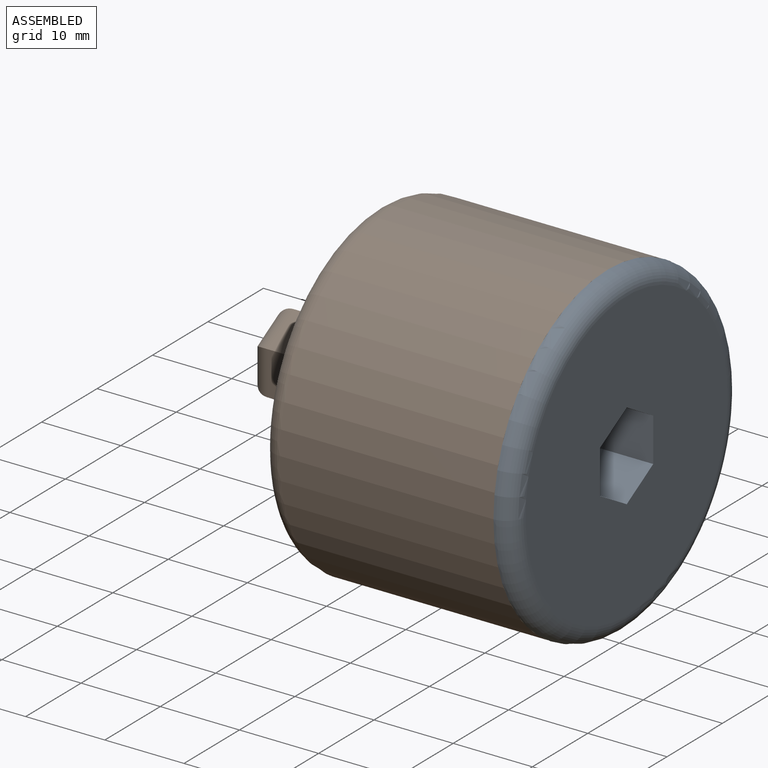
[diagram: subassembly S1 — assembled view]
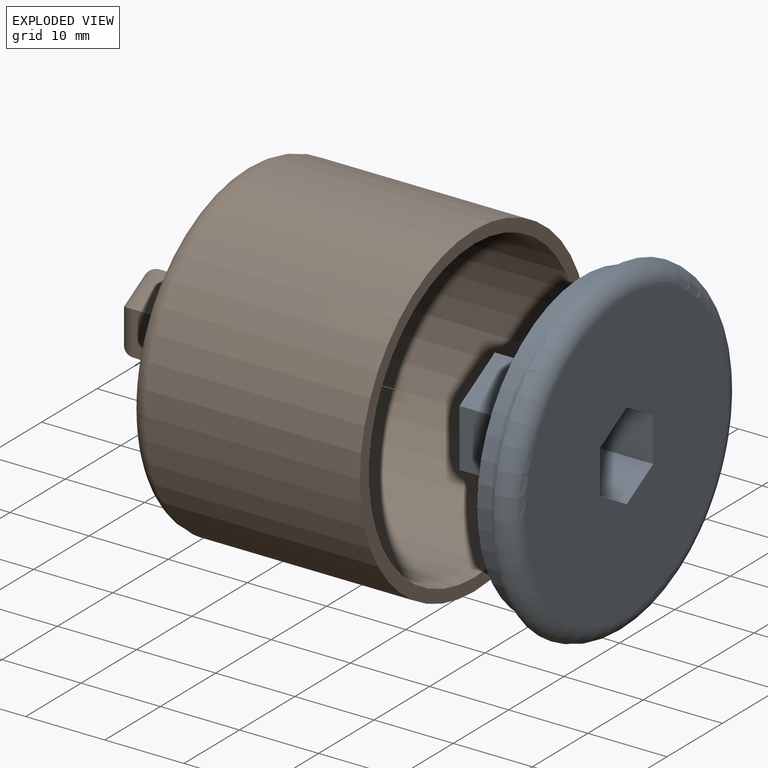
[diagram: subassembly S1 — exploded view]
SUBASSEMBLY S1 TOUR — 2 components, shown here in isolation at its own camera.

INTERNAL MATES
  1. FASTENED "Fastened 1": P9 <-> P5, direction (1.000, 0.000, 0.000) through (-91.31, -0.23, -0.31) mm
  2. FASTENED "Fastened 1": P9 <-> P5, direction (1.000, 0.000, 0.000) through (-91.31, -0.23, -0.31) mm

ASSEMBLY ORDER (within the subassembly)
  1. P5 — the base component [order heuristic]
  2. P9 [order heuristic]
Order-tag legend:
  [order heuristic] — this assembly is geometrically interlocked (no collision-free removal order exists), so components are listed in mate-graph order; insertion feasibility is not verified.
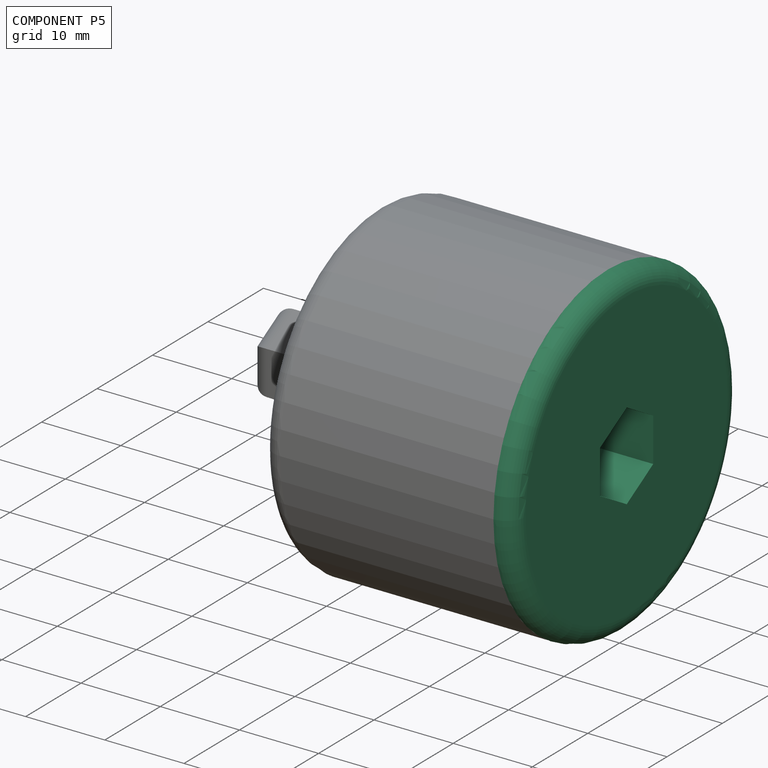
[diagram: component P5 — assembled]
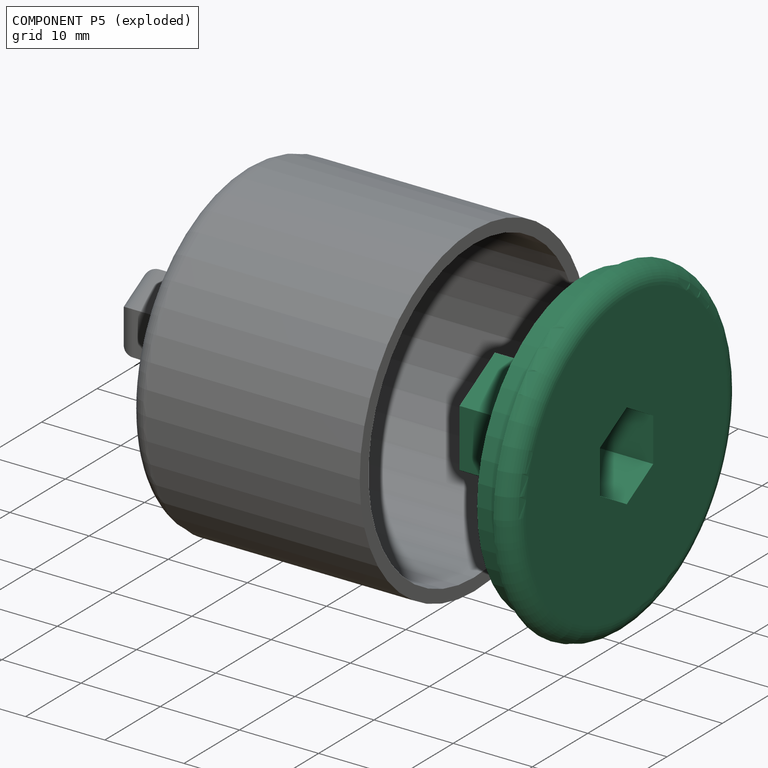
[diagram: component P5 — exploded]
COMPONENT P5 — recipe-attached (CADFS 00455742, mesh-verified: the recipe's output STEP matches this component's geometry to below the mesh-comparison resolution (tessellation chordal tolerance ~0.0911 mm)).
Held by: FASTENED mate "Fastened 1" to P9; FASTENED mate "Fastened 1" to P9.
Construction recipe (FeatureScript — the CAD program that rebuilds this solid; sketch coordinates are in the units given by the * unit suffixes, e.g. mm):

FeatureScript 1511;
import(path : "onshape/std/geometry.fs", version : "1511.0");
import(path : "onshape/std/common.fs", version : "1511.0");
const mm = millimeter;
const VERTEX = EntityType.VERTEX;
const EDGE = EntityType.EDGE;
const FACE = EntityType.FACE;
const BODY = EntityType.BODY;
function v(x, y){return vector(x, y);}
function OD(order){return orderDisambiguation(order);}
function OSD(set){return originalSetDisambiguation(set);}
function TD(topology){return topologyDisambiguation(topology);}
function TDD(query){return trueDependencyDisambiguation(query);}
function sQuery(a, b, c) {return sketchEntityQuery(a, b, c);}

annotation { "Feature Type Name" : "Feature", "Feature Type Description" : "" }
export const myFeature = defineFeature(function(context is Context, id is Id, definition is map)
    precondition{}
    {
        {
            var Q0;
            Q0=qCreatedBy(makeId("Right.planeOp"),FACE);
            var sketch = newSketch(context, id + "F0", { "sketchPlane" : qUnion([Q0])});
            skCircle(sketch, "E0.cCircle", {"center": v(0, 0) * mm, "radius": 6.35 * mm, "construction": true});
            skLineSegment(sketch, "E0.0", {"start": v(6.35, 3.67) * mm, "end": v(6.35, -3.67) * mm});
            skLineSegment(sketch, "E0.1", {"start": v(6.35, -3.67) * mm, "end": v(0, -7.33) * mm});
            skLineSegment(sketch, "E0.2", {"start": v(0, -7.33) * mm, "end": v(-6.35, -3.67) * mm});
            skLineSegment(sketch, "E0.3", {"start": v(-6.35, -3.67) * mm, "end": v(-6.35, 3.67) * mm});
            skLineSegment(sketch, "E0.4", {"start": v(-6.35, 3.67) * mm, "end": v(0, 7.33) * mm});
            skLineSegment(sketch, "E0.5", {"start": v(0, 7.33) * mm, "end": v(6.35, 3.67) * mm});
            skPoint(sketch, "E0.0.midPoint", {"position": v(6.35, 0) * mm});
            skSolve(sketch);
        }
        {
            var Q0;
            Q0 = qSketchRegion(id + "F0", true);
            extrude(context, id + "F1", {"entities" : qUnion([Q0]), "oppositeDirection" : true, "depth" : 14.29 * mm});
        }
        {
            var Q0;
            Q0=qCreatedBy(makeId("Right.planeOp"),FACE);
            var sketch = newSketch(context, id + "F2", { "sketchPlane" : qUnion([Q0])});
            skCircle(sketch, "E1", {"center": v(0, 0) * mm, "radius": 20.64 * mm});
            skSolve(sketch);
        }
        {
            var Q0;
            Q0 = qSketchRegion(id + "F2", true);
            extrude(context, id + "F3", {"entities" : qUnion([Q0]), "operationType" : NewBodyOperationType.ADD, "depth" : 0.06 * 38.1 * mm});
        }
        {
            var Q0;
            Q0=makeQuery(id+"F3.opExtrude","CAP_FACE",FACE,{"disambiguationData":[OSD([sQuery(id+"F2.wireOp",EDGE,"E1")])],"isStart":false});
            var sketch = newSketch(context, id + "F4", { "sketchPlane" : qUnion([Q0])});
            skCircle(sketch, "E2.cCircle", {"center": v(0, 0) * mm, "radius": 4.79 * mm, "construction": true});
            skLineSegment(sketch, "E2.0", {"start": v(4.79, 2.76) * mm, "end": v(4.79, -2.76) * mm});
            skLineSegment(sketch, "E2.1", {"start": v(4.79, -2.76) * mm, "end": v(0, -5.53) * mm});
            skLineSegment(sketch, "E2.2", {"start": v(0, -5.53) * mm, "end": v(-4.79, -2.76) * mm});
            skLineSegment(sketch, "E2.3", {"start": v(-4.79, -2.76) * mm, "end": v(-4.79, 2.76) * mm});
            skLineSegment(sketch, "E2.4", {"start": v(-4.79, 2.76) * mm, "end": v(0, 5.53) * mm});
            skLineSegment(sketch, "E2.5", {"start": v(0, 5.53) * mm, "end": v(4.79, 2.76) * mm});
            skPoint(sketch, "E2.0.midPoint", {"position": v(4.79, 0) * mm});
            skSolve(sketch);
        }
        {
            var Q0;
            Q0 = qSketchRegion(id + "F4", true);
            extrude(context, id + "F5", {"entities" : qUnion([Q0]), "operationType" : NewBodyOperationType.REMOVE, "oppositeDirection" : true, "depth" : 9.52 * mm});
        }
        {
            var Q0;
            Q0=makeQuery(id+"F3.opExtrude","CAP_FACE",FACE,{"disambiguationData":[OSD([sQuery(id+"F2.wireOp",EDGE,"E1")])],"isStart":true});
            var sketch = newSketch(context, id + "F6", { "sketchPlane" : qUnion([Q0])});
            skCircle(sketch, "E3", {"center": v(0, 0) * mm, "radius": 19.05 * mm});
            skCircle(sketch, "E4.0", {"center": v(0, 0) * mm, "radius": 17.46 * mm});
            skSolve(sketch);
        }
        {
            var Q0;
            Q0 = qSketchRegion(id + "F6", true);
            extrude(context, id + "F7", {"entities" : qUnion([Q0]), "operationType" : NewBodyOperationType.ADD, "depth" : 3.17 * mm});
        }
        {
            var Q0;
            Q0=makeQuery(id+"F3.opExtrude","CAP_EDGE",EDGE,{"disambiguationData":[OSD([sQuery(id+"F2.wireOp",EDGE,"E1")])],"isStart":false});
            fillet(context, id + "F8", {"entities" : qUnion([Q0]), "radius" : 2.38 * mm, "tangentPropagation" : true, "allowEdgeOverflow" : false});
        }
    });
